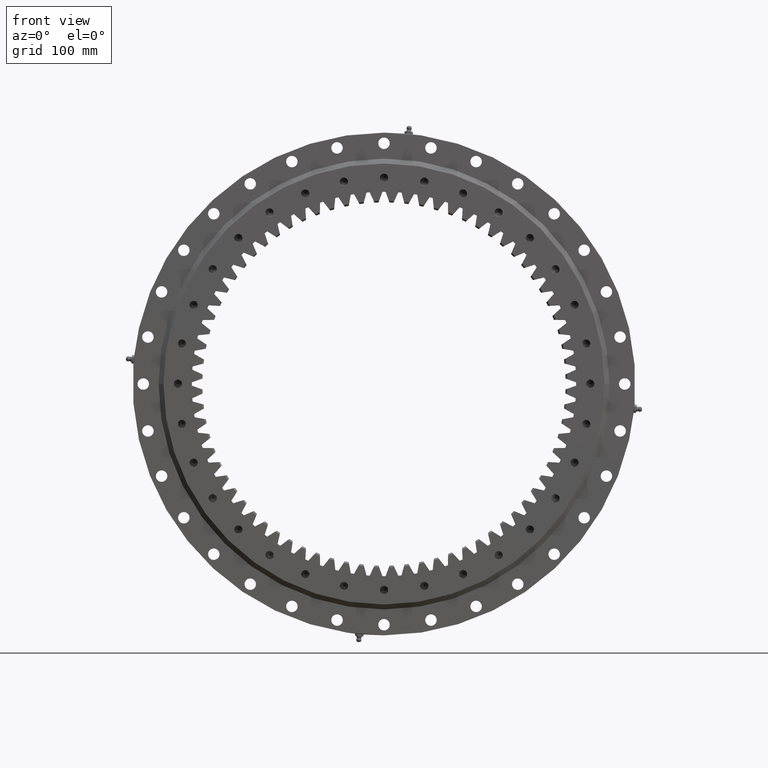
[diagram: clean part render]
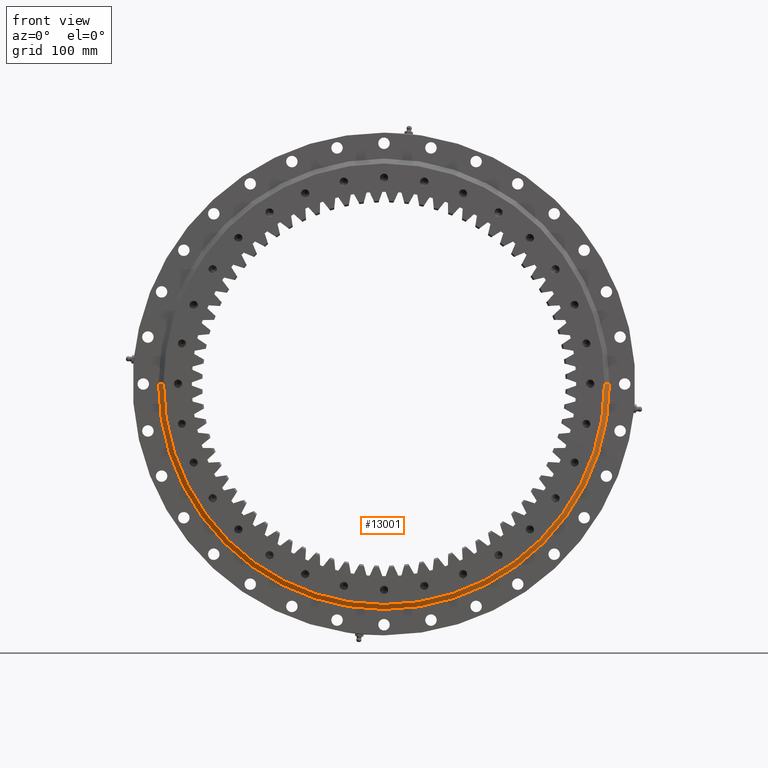
[diagram: same view with one face highlighted and labeled with its STEP entity id]
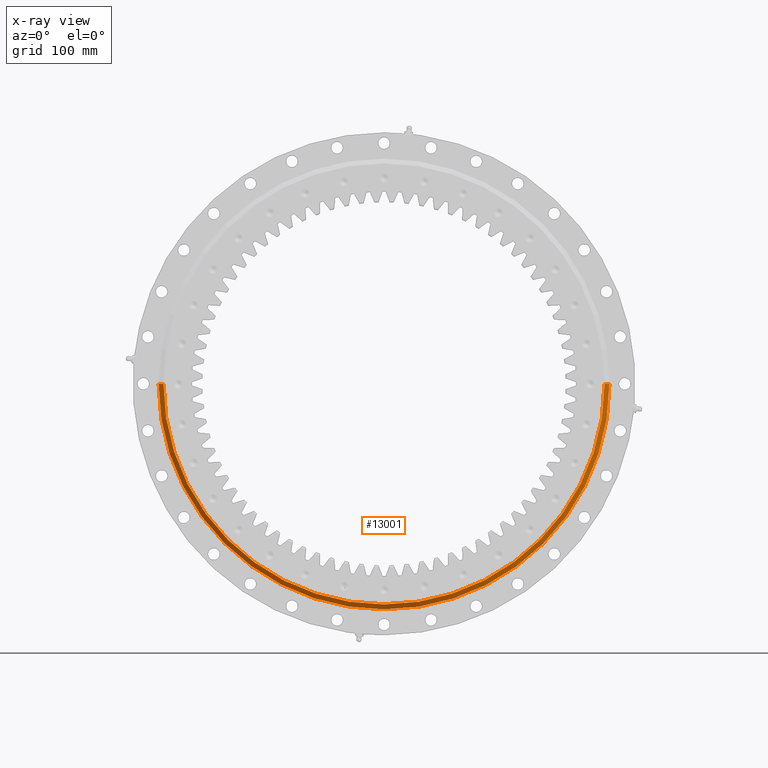
[diagram: x-ray of the same camera — body ghosted, the highlighted face saturated]
A machine part, front view. The second image highlights one B-rep face of the part: STEP entity #13001.
The next image is the same camera in x-ray: the body ghosted, the highlighted face saturated — about 0% of this face is hidden behind the body in this view.
In plain terms, the highlighted conical surface has half-angle 49.914 deg.
Its self-contained STEP definition (entity closure, byte-faithful):
#1771 = CIRCLE ( 'NONE', #4751, 270.2500000000000000 ) ;
#2989 = VERTEX_POINT ( 'NONE', #4707 ) ;
#4482 = EDGE_CURVE ( 'NONE', #13384, #18305, #18854, .T. ) ;
#4593 = CIRCLE ( 'NONE', #10009, 276.2500000000000000 ) ;
#4707 = CARTESIAN_POINT ( 'NONE',  ( 270.2500000000000000, -23.05000000000004700, 3.346347378670143000E-014 ) ) ;
#4751 = AXIS2_PLACEMENT_3D ( 'NONE', #22528, #6636, #24476 ) ;
#5568 = EDGE_LOOP ( 'NONE', ( #20848, #19574, #25901, #19286 ) ) ;
#6454 = DIRECTION ( 'NONE',  ( 1.836909530733565900E-016, 1.000000000000000000, -0.0000000000000000000 ) ) ;
#6521 = CARTESIAN_POINT ( 'NONE',  ( -270.2500000000000000, -23.04999999999994700, 0.0000000000000000000 ) ) ;
#6612 = CARTESIAN_POINT ( 'NONE',  ( -7.124011292152761300E-015, -18.00000000000006800, 0.0000000000000000000 ) ) ;
#6636 = DIRECTION ( 'NONE',  ( 1.836909530733565900E-016, 1.000000000000000000, -0.0000000000000000000 ) ) ;
#6702 = DIRECTION ( 'NONE',  ( -1.000000000000000000, 1.883862598345853800E-016, 0.0000000000000000000 ) ) ;
#8666 = AXIS2_PLACEMENT_3D ( 'NONE', #14146, #12707, #12821 ) ;
#8753 = CARTESIAN_POINT ( 'NONE',  ( 276.2500000000000000, -18.00000000000011700, 3.383086782644562900E-014 ) ) ;
#9860 = LINE ( 'NONE', #12617, #20000 ) ;
#10009 = AXIS2_PLACEMENT_3D ( 'NONE', #6612, #6454, #6702 ) ;
#12617 = CARTESIAN_POINT ( 'NONE',  ( 270.2500000000000000, -23.05000000000004700, 3.309607974695721800E-014 ) ) ;
#12707 = DIRECTION ( 'NONE',  ( 1.836909530733565900E-016, 1.000000000000000000, -0.0000000000000000000 ) ) ;
#12795 = DIRECTION ( 'NONE',  ( 0.7650765054985618800, 0.6439393921279462600, 9.369484935616559000E-017 ) ) ;
#12821 = DIRECTION ( 'NONE',  ( -1.000000000000000000, 1.797308319235914800E-016, 0.0000000000000000000 ) ) ;
#12991 = EDGE_CURVE ( 'NONE', #2989, #25874, #9860, .T. ) ;
#13001 = ADVANCED_FACE ( 'NONE', ( #20635 ), #13977, .T. ) ;
#13384 = VERTEX_POINT ( 'NONE', #6521 ) ;
#13977 = CONICAL_SURFACE ( 'NONE', #8666, 270.2500000000000000, 0.8711601305813173600 ) ;
#14146 = CARTESIAN_POINT ( 'NONE',  ( -8.051650605173198800E-015, -23.04999999999999700, 0.0000000000000000000 ) ) ;
#17003 = EDGE_CURVE ( 'NONE', #25874, #18305, #4593, .T. ) ;
#17633 = CARTESIAN_POINT ( 'NONE',  ( -276.2500000000000000, -18.00000000000001400, 0.0000000000000000000 ) ) ;
#17705 = CARTESIAN_POINT ( 'NONE',  ( -270.2500000000000000, -23.04999999999994700, 0.0000000000000000000 ) ) ;
#18305 = VERTEX_POINT ( 'NONE', #17633 ) ;
#18854 = LINE ( 'NONE', #17705, #22957 ) ;
#19286 = ORIENTED_EDGE ( 'NONE', *, *, #17003, .F. ) ;
#19574 = ORIENTED_EDGE ( 'NONE', *, *, #24052, .T. ) ;
#20000 = VECTOR ( 'NONE', #12795, 1000.000000000000100 ) ;
#20635 = FACE_OUTER_BOUND ( 'NONE', #5568, .T. ) ;
#20848 = ORIENTED_EDGE ( 'NONE', *, *, #12991, .F. ) ;
#22528 = CARTESIAN_POINT ( 'NONE',  ( -8.051650605173198800E-015, -23.04999999999999700, 0.0000000000000000000 ) ) ;
#22716 = DIRECTION ( 'NONE',  ( -0.7650765054985616500, 0.6439393921279466000, 0.0000000000000000000 ) ) ;
#22957 = VECTOR ( 'NONE', #22716, 1000.000000000000000 ) ;
#24052 = EDGE_CURVE ( 'NONE', #2989, #13384, #1771, .T. ) ;
#24476 = DIRECTION ( 'NONE',  ( -1.000000000000000000, 1.797308319235914800E-016, 0.0000000000000000000 ) ) ;
#25874 = VERTEX_POINT ( 'NONE', #8753 ) ;
#25901 = ORIENTED_EDGE ( 'NONE', *, *, #4482, .T. ) ;